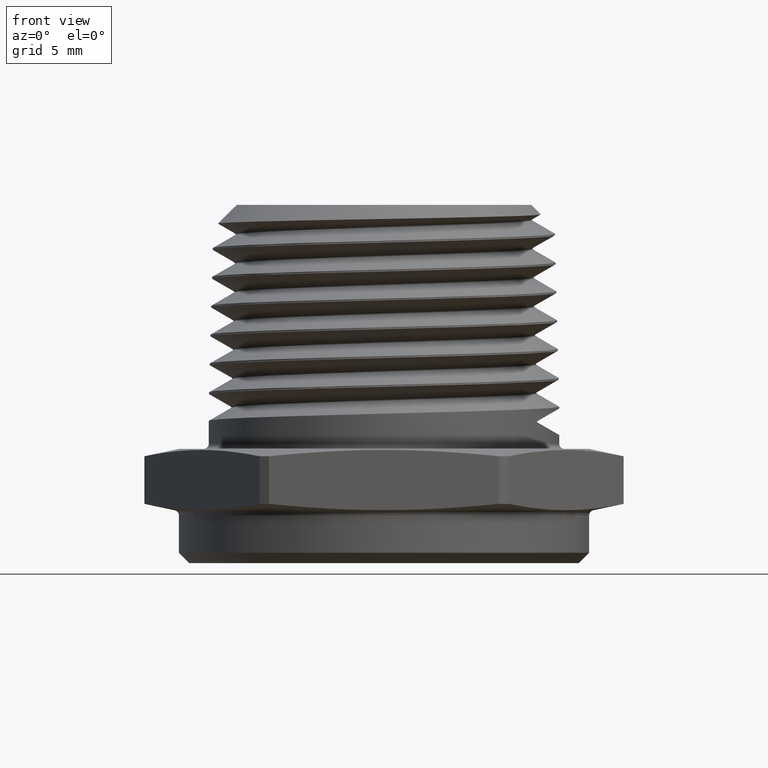
[diagram: clean part render]
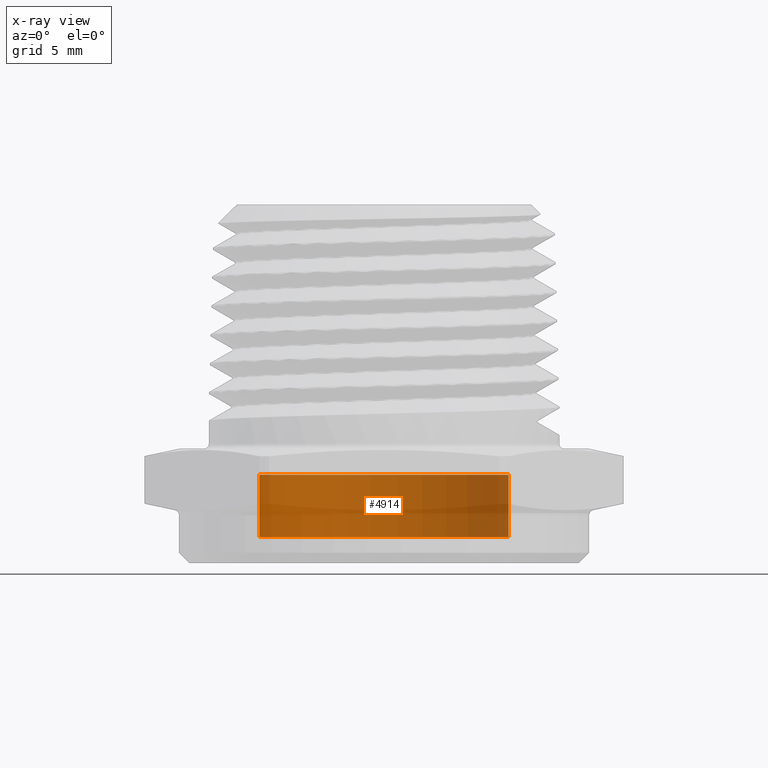
[diagram: x-ray — body ghosted, one internal face saturated and labeled with its STEP entity id]
A machine part, front view, then the same camera in x-ray: the body is ghosted and one INTERNAL B-rep face — a face not visible from any outside direction — is saturated and labeled: STEP entity #4914.
In plain terms, the highlighted cylindrical surface (partial cylindrical patch) has radius 6.096 mm, axis along (-0, -0, -1).
Its self-contained STEP definition (entity closure, byte-faithful):
#210 = DIRECTION ( 'NONE',  ( -0.0000000000000000000, -0.0000000000000000000, -1.000000000000000000 ) ) ;
#211 = DIRECTION ( 'NONE',  ( -1.000000000000000000, 0.0000000000000000000, 0.0000000000000000000 ) ) ;
#214 = CARTESIAN_POINT ( 'NONE',  ( 2.698495238042102400E-018, 0.0000000000000000000, 0.06999999999999999300 ) ) ;
#442 = LINE ( 'NONE', #4525, #443 ) ;
#443 = VECTOR ( 'NONE', #4527, 39.37007874015748100 ) ;
#480 = CIRCLE ( 'NONE', #1002, 0.2399999999999999900 ) ;
#493 = CIRCLE ( 'NONE', #1003, 0.2399999999999999900 ) ;
#531 = FACE_OUTER_BOUND ( 'NONE', #1131, .T. ) ;
#534 = CYLINDRICAL_SURFACE ( 'NONE', #1027, 0.2399999999999999900 ) ;
#647 = VERTEX_POINT ( 'NONE', #5274 ) ;
#702 = VERTEX_POINT ( 'NONE', #5277 ) ;
#723 = VERTEX_POINT ( 'NONE', #5278 ) ;
#796 = EDGE_CURVE ( 'NONE', #723, #702, #1848, .T. ) ;
#904 = EDGE_CURVE ( 'NONE', #3910, #647, #442, .T. ) ;
#950 = EDGE_CURVE ( 'NONE', #3910, #723, #480, .T. ) ;
#951 = EDGE_CURVE ( 'NONE', #647, #702, #493, .T. ) ;
#1002 = AXIS2_PLACEMENT_3D ( 'NONE', #1771, #1772, #1773 ) ;
#1003 = AXIS2_PLACEMENT_3D ( 'NONE', #1776, #1777, #1778 ) ;
#1027 = AXIS2_PLACEMENT_3D ( 'NONE', #214, #210, #211 ) ;
#1131 = EDGE_LOOP ( 'NONE', ( #4044, #4047, #4048, #4041 ) ) ;
#1771 = CARTESIAN_POINT ( 'NONE',  ( 2.698495238042102400E-018, 0.0000000000000000000, 0.06999999999999999300 ) ) ;
#1772 = DIRECTION ( 'NONE',  ( 0.0000000000000000000, 0.0000000000000000000, 1.000000000000000000 ) ) ;
#1773 = DIRECTION ( 'NONE',  ( 1.000000000000000000, 0.0000000000000000000, 0.0000000000000000000 ) ) ;
#1776 = CARTESIAN_POINT ( 'NONE',  ( 2.698495238042102400E-018, 0.0000000000000000000, -0.05000000000000000300 ) ) ;
#1777 = DIRECTION ( 'NONE',  ( 0.0000000000000000000, 0.0000000000000000000, 1.000000000000000000 ) ) ;
#1778 = DIRECTION ( 'NONE',  ( 1.000000000000000000, 0.0000000000000000000, 0.0000000000000000000 ) ) ;
#1785 = CARTESIAN_POINT ( 'NONE',  ( 0.2399999999999999900, 2.939152317953647400E-017, 0.06999999999999999300 ) ) ;
#1843 = VECTOR ( 'NONE', #5186, 39.37007874015748100 ) ;
#1848 = LINE ( 'NONE', #5254, #1843 ) ;
#3910 = VERTEX_POINT ( 'NONE', #1785 ) ;
#4041 = ORIENTED_EDGE ( 'NONE', *, *, #796, .F. ) ;
#4044 = ORIENTED_EDGE ( 'NONE', *, *, #950, .F. ) ;
#4047 = ORIENTED_EDGE ( 'NONE', *, *, #904, .T. ) ;
#4048 = ORIENTED_EDGE ( 'NONE', *, *, #951, .T. ) ;
#4525 = CARTESIAN_POINT ( 'NONE',  ( 0.2399999999999999900, 2.939152317953647400E-017, 0.06999999999999999300 ) ) ;
#4527 = DIRECTION ( 'NONE',  ( -0.0000000000000000000, -0.0000000000000000000, -1.000000000000000000 ) ) ;
#4914 = ADVANCED_FACE ( 'NONE', ( #531 ), #534, .T. ) ;
#5186 = DIRECTION ( 'NONE',  ( -0.0000000000000000000, -0.0000000000000000000, -1.000000000000000000 ) ) ;
#5254 = CARTESIAN_POINT ( 'NONE',  ( -0.2399999999999999900, 0.0000000000000000000, 0.06999999999999999300 ) ) ;
#5274 = CARTESIAN_POINT ( 'NONE',  ( 0.2399999999999999900, 2.939152317953647400E-017, -0.05000000000000000300 ) ) ;
#5277 = CARTESIAN_POINT ( 'NONE',  ( -0.2399999999999999900, 0.0000000000000000000, -0.05000000000000000300 ) ) ;
#5278 = CARTESIAN_POINT ( 'NONE',  ( -0.2399999999999999900, 0.0000000000000000000, 0.06999999999999999300 ) ) ;